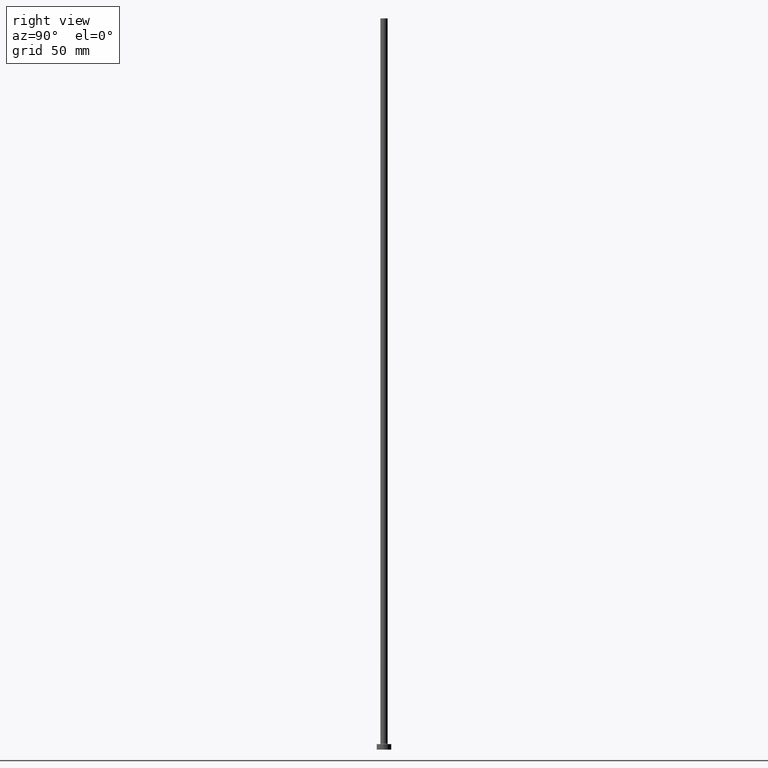
[diagram: clean part render]
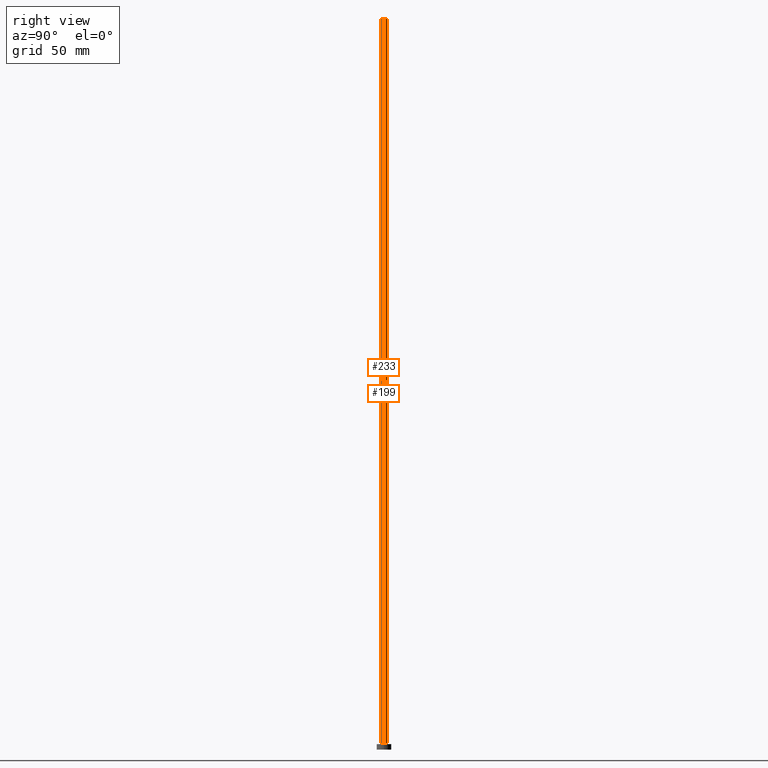
[diagram: same view with one multi-face feature highlighted, each face labeled with its STEP entity id]
A machine part, right view. The highlighted faces form ONE feature: a constant-radius fillet chain: 2 tangent blend faces with common blend radius 2 mm. The faces share edges in the B-rep.
Their STEP definitions:
[1] entity #199 (Cylinder):
#5 = DIRECTION ( 'NONE',  ( -0.000000000000000000, -0.000000000000000000, -1.000000000000000000 ) ) ;
#12 = AXIS2_PLACEMENT_3D ( 'NONE', #59, #92, #195 ) ;
#20 = AXIS2_PLACEMENT_3D ( 'NONE', #201, #124, #332 ) ;
#40 = LINE ( 'NONE', #322, #413 ) ;
#48 = CARTESIAN_POINT ( 'NONE',  ( 2.000000000000000000, 2.449293598294706414E-16, 400.0000000000000000 ) ) ;
#55 = VERTEX_POINT ( 'NONE', #354 ) ;
#59 = CARTESIAN_POINT ( 'NONE',  ( 0.000000000000000000, 0.000000000000000000, 400.0000000000000000 ) ) ;
#69 = VERTEX_POINT ( 'NONE', #285 ) ;
#73 = DIRECTION ( 'NONE',  ( 0.000000000000000000, 0.000000000000000000, 1.000000000000000000 ) ) ;
#77 = VERTEX_POINT ( 'NONE', #430 ) ;
#90 = CYLINDRICAL_SURFACE ( 'NONE', #12, 2.000000000000000000 ) ;
#92 = DIRECTION ( 'NONE',  ( -0.000000000000000000, -0.000000000000000000, -1.000000000000000000 ) ) ;
#98 = AXIS2_PLACEMENT_3D ( 'NONE', #317, #73, #150 ) ;
#107 = EDGE_CURVE ( 'NONE', #55, #457, #40, .T. ) ;
#124 = DIRECTION ( 'NONE',  ( 0.000000000000000000, 0.000000000000000000, 1.000000000000000000 ) ) ;
#147 = CARTESIAN_POINT ( 'NONE',  ( -2.000000000000000000, 0.000000000000000000, 3.300000000000025135 ) ) ;
#150 = DIRECTION ( 'NONE',  ( 1.000000000000000000, 0.000000000000000000, 0.000000000000000000 ) ) ;
#176 = EDGE_CURVE ( 'NONE', #69, #77, #294, .T. ) ;
#195 = DIRECTION ( 'NONE',  ( -1.000000000000000000, 0.000000000000000000, 0.000000000000000000 ) ) ;
#199 = ADVANCED_FACE ( 'NONE', ( #409 ), #90, .T. ) ;
#201 = CARTESIAN_POINT ( 'NONE',  ( 0.000000000000000000, 0.000000000000000000, 400.0000000000000000 ) ) ;
#202 = EDGE_LOOP ( 'NONE', ( #324, #434, #421, #242 ) ) ;
#225 = EDGE_CURVE ( 'NONE', #69, #55, #246, .T. ) ;
#242 = ORIENTED_EDGE ( 'NONE', *, *, #107, .F. ) ;
#246 = CIRCLE ( 'NONE', #20, 2.000000000000000000 ) ;
#262 = DIRECTION ( 'NONE',  ( -0.000000000000000000, -0.000000000000000000, -1.000000000000000000 ) ) ;
#285 = CARTESIAN_POINT ( 'NONE',  ( 2.000000000000000000, 2.449293598294706414E-16, 400.0000000000000000 ) ) ;
#294 = LINE ( 'NONE', #48, #451 ) ;
#317 = CARTESIAN_POINT ( 'NONE',  ( 0.000000000000000000, 0.000000000000000000, 3.300000000000025135 ) ) ;
#322 = CARTESIAN_POINT ( 'NONE',  ( -2.000000000000000000, 0.000000000000000000, 400.0000000000000000 ) ) ;
#324 = ORIENTED_EDGE ( 'NONE', *, *, #225, .F. ) ;
#332 = DIRECTION ( 'NONE',  ( 1.000000000000000000, 0.000000000000000000, 0.000000000000000000 ) ) ;
#351 = CIRCLE ( 'NONE', #98, 2.000000000000000000 ) ;
#354 = CARTESIAN_POINT ( 'NONE',  ( -2.000000000000000000, 0.000000000000000000, 400.0000000000000000 ) ) ;
#409 = FACE_OUTER_BOUND ( 'NONE', #202, .T. ) ;
#413 = VECTOR ( 'NONE', #5, 1000.000000000000000 ) ;
#414 = EDGE_CURVE ( 'NONE', #77, #457, #351, .T. ) ;
#421 = ORIENTED_EDGE ( 'NONE', *, *, #414, .T. ) ;
#430 = CARTESIAN_POINT ( 'NONE',  ( 2.000000000000000000, 2.449293598294706414E-16, 3.300000000000025135 ) ) ;
#434 = ORIENTED_EDGE ( 'NONE', *, *, #176, .T. ) ;
#451 = VECTOR ( 'NONE', #262, 1000.000000000000000 ) ;
#457 = VERTEX_POINT ( 'NONE', #147 ) ;
[2] entity #233 (Cylinder):
#5 = DIRECTION ( 'NONE',  ( -0.000000000000000000, -0.000000000000000000, -1.000000000000000000 ) ) ;
#8 = EDGE_CURVE ( 'NONE', #55, #69, #35, .T. ) ;
#31 = DIRECTION ( 'NONE',  ( 1.000000000000000000, 0.000000000000000000, 0.000000000000000000 ) ) ;
#35 = CIRCLE ( 'NONE', #218, 2.000000000000000000 ) ;
#40 = LINE ( 'NONE', #322, #413 ) ;
#48 = CARTESIAN_POINT ( 'NONE',  ( 2.000000000000000000, 2.449293598294706414E-16, 400.0000000000000000 ) ) ;
#55 = VERTEX_POINT ( 'NONE', #354 ) ;
#66 = DIRECTION ( 'NONE',  ( 0.000000000000000000, 0.000000000000000000, 1.000000000000000000 ) ) ;
#69 = VERTEX_POINT ( 'NONE', #285 ) ;
#77 = VERTEX_POINT ( 'NONE', #430 ) ;
#80 = AXIS2_PLACEMENT_3D ( 'NONE', #349, #66, #31 ) ;
#107 = EDGE_CURVE ( 'NONE', #55, #457, #40, .T. ) ;
#127 = DIRECTION ( 'NONE',  ( -0.000000000000000000, -0.000000000000000000, -1.000000000000000000 ) ) ;
#145 = ORIENTED_EDGE ( 'NONE', *, *, #323, .T. ) ;
#147 = CARTESIAN_POINT ( 'NONE',  ( -2.000000000000000000, 0.000000000000000000, 3.300000000000025135 ) ) ;
#159 = ORIENTED_EDGE ( 'NONE', *, *, #8, .F. ) ;
#171 = DIRECTION ( 'NONE',  ( 1.000000000000000000, 0.000000000000000000, 0.000000000000000000 ) ) ;
#176 = EDGE_CURVE ( 'NONE', #69, #77, #294, .T. ) ;
#204 = FACE_OUTER_BOUND ( 'NONE', #213, .T. ) ;
#213 = EDGE_LOOP ( 'NONE', ( #243, #159, #418, #145 ) ) ;
#218 = AXIS2_PLACEMENT_3D ( 'NONE', #452, #346, #171 ) ;
#233 = ADVANCED_FACE ( 'NONE', ( #204 ), #265, .T. ) ;
#243 = ORIENTED_EDGE ( 'NONE', *, *, #176, .F. ) ;
#262 = DIRECTION ( 'NONE',  ( -0.000000000000000000, -0.000000000000000000, -1.000000000000000000 ) ) ;
#265 = CYLINDRICAL_SURFACE ( 'NONE', #319, 2.000000000000000000 ) ;
#269 = DIRECTION ( 'NONE',  ( -1.000000000000000000, 0.000000000000000000, 0.000000000000000000 ) ) ;
#275 = CIRCLE ( 'NONE', #80, 2.000000000000000000 ) ;
#285 = CARTESIAN_POINT ( 'NONE',  ( 2.000000000000000000, 2.449293598294706414E-16, 400.0000000000000000 ) ) ;
#294 = LINE ( 'NONE', #48, #451 ) ;
#319 = AXIS2_PLACEMENT_3D ( 'NONE', #443, #127, #269 ) ;
#322 = CARTESIAN_POINT ( 'NONE',  ( -2.000000000000000000, 0.000000000000000000, 400.0000000000000000 ) ) ;
#323 = EDGE_CURVE ( 'NONE', #457, #77, #275, .T. ) ;
#346 = DIRECTION ( 'NONE',  ( 0.000000000000000000, 0.000000000000000000, 1.000000000000000000 ) ) ;
#349 = CARTESIAN_POINT ( 'NONE',  ( 0.000000000000000000, 0.000000000000000000, 3.300000000000025135 ) ) ;
#354 = CARTESIAN_POINT ( 'NONE',  ( -2.000000000000000000, 0.000000000000000000, 400.0000000000000000 ) ) ;
#413 = VECTOR ( 'NONE', #5, 1000.000000000000000 ) ;
#418 = ORIENTED_EDGE ( 'NONE', *, *, #107, .T. ) ;
#430 = CARTESIAN_POINT ( 'NONE',  ( 2.000000000000000000, 2.449293598294706414E-16, 3.300000000000025135 ) ) ;
#443 = CARTESIAN_POINT ( 'NONE',  ( 0.000000000000000000, 0.000000000000000000, 400.0000000000000000 ) ) ;
#451 = VECTOR ( 'NONE', #262, 1000.000000000000000 ) ;
#452 = CARTESIAN_POINT ( 'NONE',  ( 0.000000000000000000, 0.000000000000000000, 400.0000000000000000 ) ) ;
#457 = VERTEX_POINT ( 'NONE', #147 ) ;